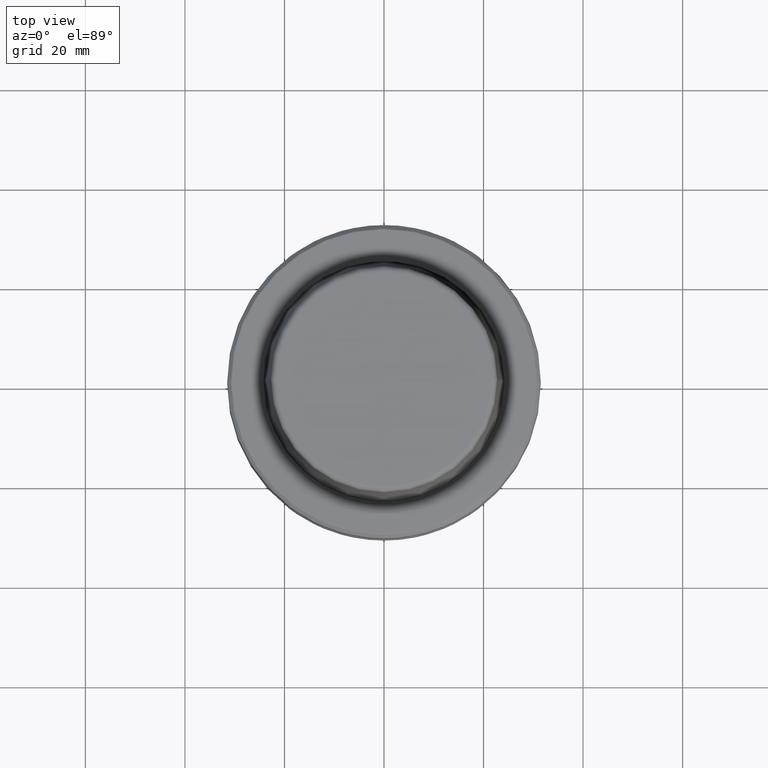
[diagram: clean part render]
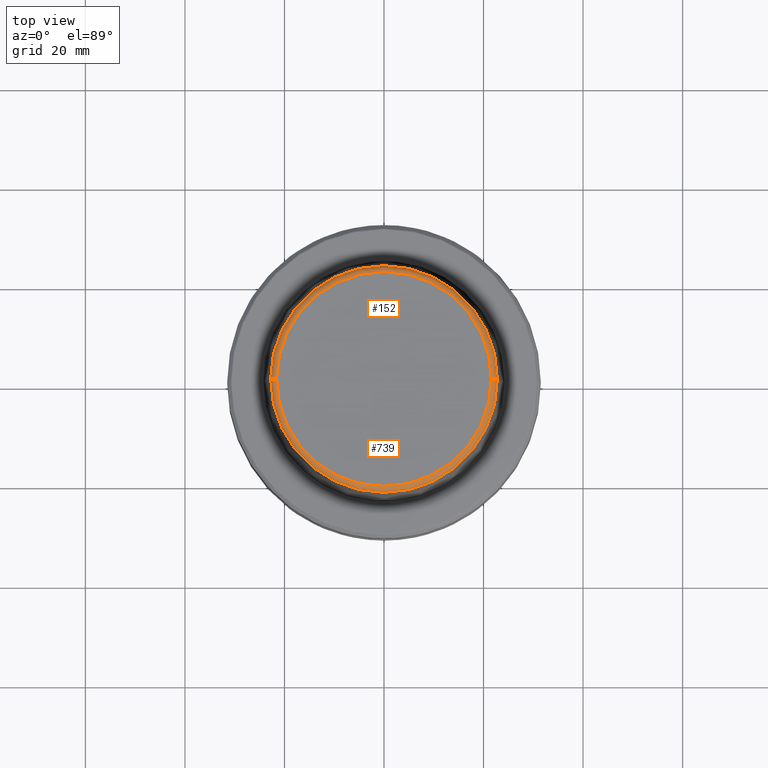
[diagram: same view with one multi-face feature highlighted, each face labeled with its STEP entity id]
A machine part, top view. The highlighted faces form ONE feature: a constant-radius fillet chain: 2 tangent blend faces with common blend radius 1.2 mm. The faces share edges in the B-rep.
Their STEP definitions:
[1] entity #739 (Torus):
#121 = AXIS2_PLACEMENT_3D ( 'NONE', #382, #373, #1257 ) ;
#122 = ORIENTED_EDGE ( 'NONE', *, *, #890, .F. ) ;
#165 = CARTESIAN_POINT ( 'NONE',  ( 0.0000000000000000000, 0.0000000000000000000, 30.69999999999999200 ) ) ;
#174 = AXIS2_PLACEMENT_3D ( 'NONE', #365, #215, #634 ) ;
#215 = DIRECTION ( 'NONE',  ( 1.224646799147353200E-016, 1.000000000000000000, 0.0000000000000000000 ) ) ;
#255 = CARTESIAN_POINT ( 'NONE',  ( 22.77957961851797100, 2.876386432489616700E-015, 30.76004333261571900 ) ) ;
#271 = CIRCLE ( 'NONE', #828, 21.58108272732117100 ) ;
#339 = DIRECTION ( 'NONE',  ( -0.0000000000000000000, -0.0000000000000000000, 1.000000000000000000 ) ) ;
#343 = DIRECTION ( 'NONE',  ( 1.000000000000000000, 0.0000000000000000000, 0.0000000000000000000 ) ) ;
#357 = CARTESIAN_POINT ( 'NONE',  ( 21.58108272732117100, 0.0000000000000000000, 31.89999999999999900 ) ) ;
#365 = CARTESIAN_POINT ( 'NONE',  ( -21.58108272732117100, 2.642920388414810300E-015, 30.69999999999999200 ) ) ;
#373 = DIRECTION ( 'NONE',  ( 0.0000000000000000000, -1.000000000000000000, 0.0000000000000000000 ) ) ;
#382 = CARTESIAN_POINT ( 'NONE',  ( 21.58108272732117100, 0.0000000000000000000, 30.69999999999999200 ) ) ;
#393 = CIRCLE ( 'NONE', #121, 1.200000000000003100 ) ;
#412 = CARTESIAN_POINT ( 'NONE',  ( -21.58108272732117100, 2.716307157494421400E-015, 31.89999999999999900 ) ) ;
#438 = CARTESIAN_POINT ( 'NONE',  ( 0.0000000000000000000, 0.0000000000000000000, 30.76004333261571900 ) ) ;
#462 = CIRCLE ( 'NONE', #748, 22.77957961851797100 ) ;
#507 = VERTEX_POINT ( 'NONE', #412 ) ;
#543 = DIRECTION ( 'NONE',  ( -0.0000000000000000000, -0.0000000000000000000, 1.000000000000000000 ) ) ;
#548 = ORIENTED_EDGE ( 'NONE', *, *, #1254, .T. ) ;
#634 = DIRECTION ( 'NONE',  ( -1.000000000000000000, 1.224646799147353200E-016, 0.0000000000000000000 ) ) ;
#695 = AXIS2_PLACEMENT_3D ( 'NONE', #165, #543, #1116 ) ;
#739 = ADVANCED_FACE ( 'NONE', ( #1249 ), #1173, .T. ) ;
#748 = AXIS2_PLACEMENT_3D ( 'NONE', #438, #339, #343 ) ;
#780 = DIRECTION ( 'NONE',  ( -0.0000000000000000000, -0.0000000000000000000, 1.000000000000000000 ) ) ;
#807 = ORIENTED_EDGE ( 'NONE', *, *, #937, .F. ) ;
#828 = AXIS2_PLACEMENT_3D ( 'NONE', #1166, #780, #989 ) ;
#887 = ORIENTED_EDGE ( 'NONE', *, *, #997, .T. ) ;
#890 = EDGE_CURVE ( 'NONE', #1062, #507, #1075, .T. ) ;
#937 = EDGE_CURVE ( 'NONE', #507, #961, #271, .T. ) ;
#961 = VERTEX_POINT ( 'NONE', #357 ) ;
#989 = DIRECTION ( 'NONE',  ( 1.000000000000000000, 0.0000000000000000000, 0.0000000000000000000 ) ) ;
#997 = EDGE_CURVE ( 'NONE', #1062, #1025, #462, .T. ) ;
#1025 = VERTEX_POINT ( 'NONE', #255 ) ;
#1044 = EDGE_LOOP ( 'NONE', ( #122, #887, #548, #807 ) ) ;
#1062 = VERTEX_POINT ( 'NONE', #1223 ) ;
#1075 = CIRCLE ( 'NONE', #174, 1.200000000000003100 ) ;
#1116 = DIRECTION ( 'NONE',  ( 1.000000000000000000, 0.0000000000000000000, 0.0000000000000000000 ) ) ;
#1166 = CARTESIAN_POINT ( 'NONE',  ( 0.0000000000000000000, 0.0000000000000000000, 31.89999999999999900 ) ) ;
#1173 = TOROIDAL_SURFACE ( 'NONE', #695, 21.58108272732117100, 1.200000000000003100 ) ;
#1223 = CARTESIAN_POINT ( 'NONE',  ( -22.77957961851797100, 0.0000000000000000000, 30.76004333261571900 ) ) ;
#1249 = FACE_OUTER_BOUND ( 'NONE', #1044, .T. ) ;
#1254 = EDGE_CURVE ( 'NONE', #1025, #961, #393, .T. ) ;
#1257 = DIRECTION ( 'NONE',  ( 0.0000000000000000000, 0.0000000000000000000, -1.000000000000000000 ) ) ;
[2] entity #152 (Torus):
#39 = ORIENTED_EDGE ( 'NONE', *, *, #986, .F. ) ;
#48 = ORIENTED_EDGE ( 'NONE', *, *, #1254, .F. ) ;
#86 = CARTESIAN_POINT ( 'NONE',  ( 0.0000000000000000000, 0.0000000000000000000, 30.76004333261571900 ) ) ;
#121 = AXIS2_PLACEMENT_3D ( 'NONE', #382, #373, #1257 ) ;
#152 = ADVANCED_FACE ( 'NONE', ( #727 ), #1176, .T. ) ;
#174 = AXIS2_PLACEMENT_3D ( 'NONE', #365, #215, #634 ) ;
#182 = CIRCLE ( 'NONE', #183, 22.77957961851797100 ) ;
#183 = AXIS2_PLACEMENT_3D ( 'NONE', #86, #756, #185 ) ;
#185 = DIRECTION ( 'NONE',  ( 1.000000000000000000, 0.0000000000000000000, 0.0000000000000000000 ) ) ;
#215 = DIRECTION ( 'NONE',  ( 1.224646799147353200E-016, 1.000000000000000000, 0.0000000000000000000 ) ) ;
#239 = CIRCLE ( 'NONE', #595, 21.58108272732117100 ) ;
#255 = CARTESIAN_POINT ( 'NONE',  ( 22.77957961851797100, 2.876386432489616700E-015, 30.76004333261571900 ) ) ;
#277 = DIRECTION ( 'NONE',  ( -0.0000000000000000000, -0.0000000000000000000, 1.000000000000000000 ) ) ;
#318 = ORIENTED_EDGE ( 'NONE', *, *, #890, .T. ) ;
#357 = CARTESIAN_POINT ( 'NONE',  ( 21.58108272732117100, 0.0000000000000000000, 31.89999999999999900 ) ) ;
#365 = CARTESIAN_POINT ( 'NONE',  ( -21.58108272732117100, 2.642920388414810300E-015, 30.69999999999999200 ) ) ;
#373 = DIRECTION ( 'NONE',  ( 0.0000000000000000000, -1.000000000000000000, 0.0000000000000000000 ) ) ;
#382 = CARTESIAN_POINT ( 'NONE',  ( 21.58108272732117100, 0.0000000000000000000, 30.69999999999999200 ) ) ;
#393 = CIRCLE ( 'NONE', #121, 1.200000000000003100 ) ;
#412 = CARTESIAN_POINT ( 'NONE',  ( -21.58108272732117100, 2.716307157494421400E-015, 31.89999999999999900 ) ) ;
#476 = EDGE_LOOP ( 'NONE', ( #490, #318, #39, #48 ) ) ;
#490 = ORIENTED_EDGE ( 'NONE', *, *, #1253, .T. ) ;
#503 = AXIS2_PLACEMENT_3D ( 'NONE', #868, #970, #874 ) ;
#507 = VERTEX_POINT ( 'NONE', #412 ) ;
#595 = AXIS2_PLACEMENT_3D ( 'NONE', #833, #277, #757 ) ;
#634 = DIRECTION ( 'NONE',  ( -1.000000000000000000, 1.224646799147353200E-016, 0.0000000000000000000 ) ) ;
#727 = FACE_OUTER_BOUND ( 'NONE', #476, .T. ) ;
#756 = DIRECTION ( 'NONE',  ( -0.0000000000000000000, -0.0000000000000000000, 1.000000000000000000 ) ) ;
#757 = DIRECTION ( 'NONE',  ( 1.000000000000000000, 0.0000000000000000000, 0.0000000000000000000 ) ) ;
#833 = CARTESIAN_POINT ( 'NONE',  ( 0.0000000000000000000, 0.0000000000000000000, 31.89999999999999900 ) ) ;
#868 = CARTESIAN_POINT ( 'NONE',  ( 0.0000000000000000000, 0.0000000000000000000, 30.69999999999999200 ) ) ;
#874 = DIRECTION ( 'NONE',  ( 1.000000000000000000, 0.0000000000000000000, 0.0000000000000000000 ) ) ;
#890 = EDGE_CURVE ( 'NONE', #1062, #507, #1075, .T. ) ;
#961 = VERTEX_POINT ( 'NONE', #357 ) ;
#970 = DIRECTION ( 'NONE',  ( -0.0000000000000000000, -0.0000000000000000000, 1.000000000000000000 ) ) ;
#986 = EDGE_CURVE ( 'NONE', #961, #507, #239, .T. ) ;
#1025 = VERTEX_POINT ( 'NONE', #255 ) ;
#1062 = VERTEX_POINT ( 'NONE', #1223 ) ;
#1075 = CIRCLE ( 'NONE', #174, 1.200000000000003100 ) ;
#1176 = TOROIDAL_SURFACE ( 'NONE', #503, 21.58108272732117100, 1.200000000000003100 ) ;
#1223 = CARTESIAN_POINT ( 'NONE',  ( -22.77957961851797100, 0.0000000000000000000, 30.76004333261571900 ) ) ;
#1253 = EDGE_CURVE ( 'NONE', #1025, #1062, #182, .T. ) ;
#1254 = EDGE_CURVE ( 'NONE', #1025, #961, #393, .T. ) ;
#1257 = DIRECTION ( 'NONE',  ( 0.0000000000000000000, 0.0000000000000000000, -1.000000000000000000 ) ) ;